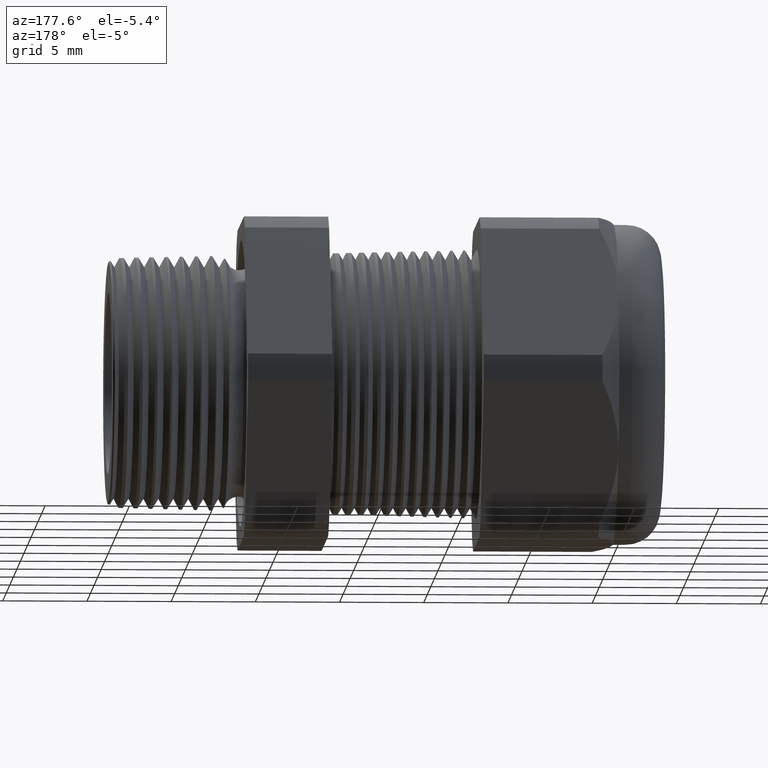
[diagram: clean part render]
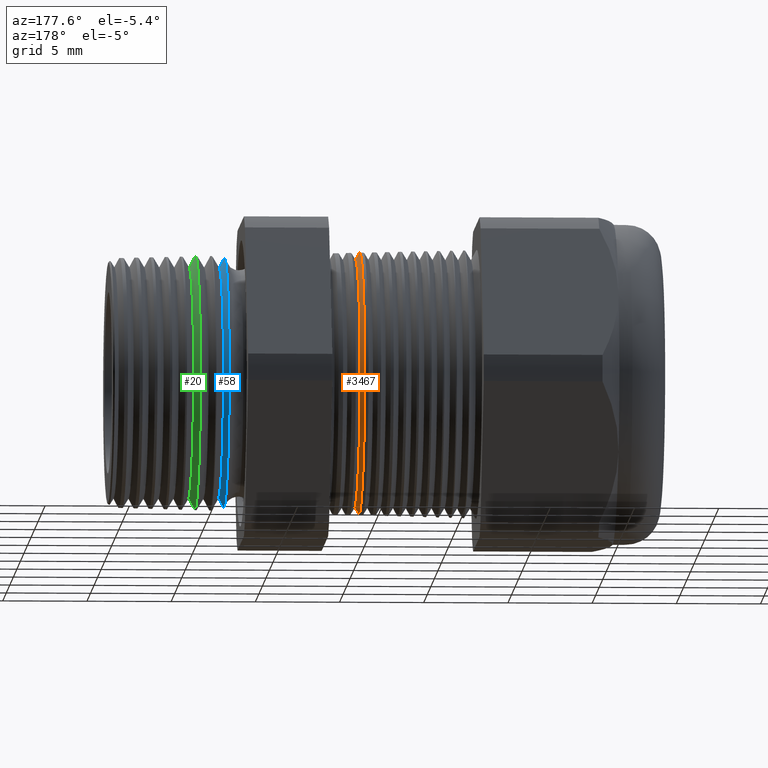
[diagram: same view with three faces highlighted in distinct colors, each labeled with its STEP entity id]
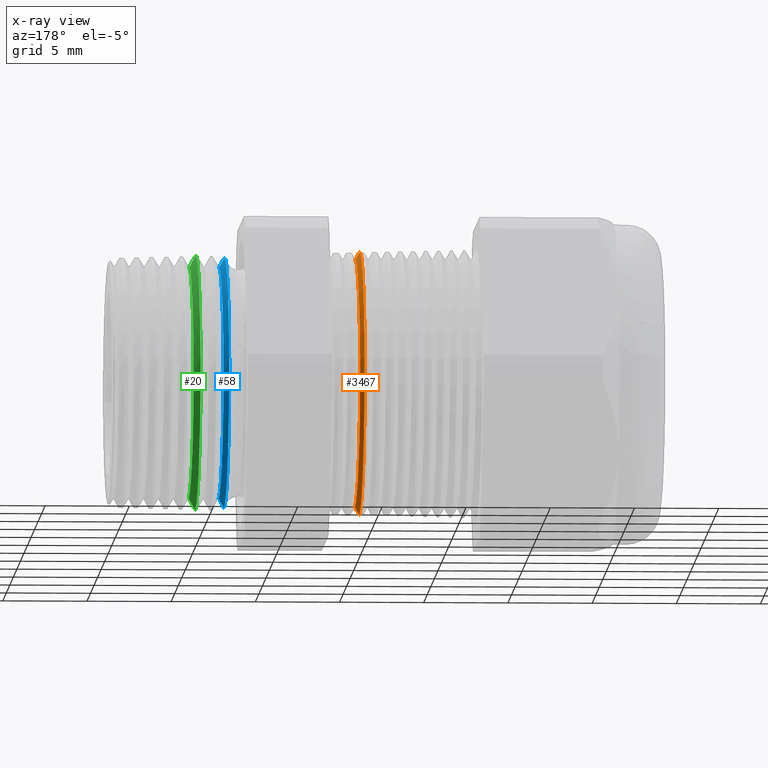
[diagram: x-ray of the same camera — body ghosted, the three highlighted faces saturated]
A machine part, auxiliary view with three faces highlighted in distinct colors.
The next image is the same camera in x-ray (body ghosted, the three faces saturated) — at least one of them is partly hidden behind the body in this view.
Their STEP definitions:

[orange] entity #3467 — the highlighted conical surface has half-angle 61.5 deg.
#573 = DIRECTION ( 'NONE',  ( -0.4771587602596185100, 0.0000000000000000000, 0.8788171126619599400 ) ) ;
#574 = VECTOR ( 'NONE', #573, 39.37007874015748900 ) ;
#575 = CARTESIAN_POINT ( 'NONE',  ( -0.5908661417322828000, 0.0000000000000000000, 0.3150000000000000000 ) ) ;
#576 = LINE ( 'NONE', #575, #574 ) ;
#613 = CARTESIAN_POINT ( 'NONE',  ( -0.5770917547981787600, 0.0000000000000000000, 0.2896307351718082600 ) ) ;
#614 = CARTESIAN_POINT ( 'NONE',  ( -0.5770917547981787600, 3.658378589421232100E-017, -0.2896307351718082600 ) ) ;
#615 = DIRECTION ( 'NONE',  ( 0.0000000000000000000, 0.0000000000000000000, -1.000000000000000000 ) ) ;
#616 = DIRECTION ( 'NONE',  ( 1.000000000000000000, 0.0000000000000000000, 0.0000000000000000000 ) ) ;
#617 = AXIS2_PLACEMENT_3D ( 'NONE', #624, #616, #615 ) ;
#618 = CIRCLE ( 'NONE', #617, 0.2896307351718082600 ) ;
#624 = CARTESIAN_POINT ( 'NONE',  ( -0.5770917547981787600, 0.0000000000000000000, 0.0000000000000000000 ) ) ;
#636 = CARTESIAN_POINT ( 'NONE',  ( -0.5869719704530196300, 0.0000000000000000000, 0.3078278287126256500 ) ) ;
#637 = DIRECTION ( 'NONE',  ( 0.0000000000000000000, 0.0000000000000000000, 1.000000000000000000 ) ) ;
#638 = DIRECTION ( 'NONE',  ( 1.000000000000000000, 0.0000000000000000000, 0.0000000000000000000 ) ) ;
#639 = CARTESIAN_POINT ( 'NONE',  ( -0.5869719704530196300, 0.0000000000000000000, 0.0000000000000000000 ) ) ;
#640 = AXIS2_PLACEMENT_3D ( 'NONE', #639, #638, #637 ) ;
#641 = CIRCLE ( 'NONE', #640, 0.3078278287126256500 ) ;
#642 = CARTESIAN_POINT ( 'NONE',  ( -0.5869719704530196300, 3.771218986223280800E-017, -0.3078278287126256500 ) ) ;
#643 = DIRECTION ( 'NONE',  ( -0.4771587602596185100, 1.076240564057388000E-016, -0.8788171126619599400 ) ) ;
#644 = VECTOR ( 'NONE', #643, 39.37007874015748900 ) ;
#645 = CARTESIAN_POINT ( 'NONE',  ( -0.5908661417322828000, 3.857637417314162700E-017, -0.3150000000000000000 ) ) ;
#646 = DIRECTION ( 'NONE',  ( 0.0000000000000000000, 0.0000000000000000000, 1.000000000000000000 ) ) ;
#647 = DIRECTION ( 'NONE',  ( -1.000000000000000000, 0.0000000000000000000, 0.0000000000000000000 ) ) ;
#648 = CARTESIAN_POINT ( 'NONE',  ( -0.5908661417322828000, 0.0000000000000000000, 0.0000000000000000000 ) ) ;
#649 = AXIS2_PLACEMENT_3D ( 'NONE', #648, #647, #646 ) ;
#650 = CONICAL_SURFACE ( 'NONE', #649, 0.3150000000000000000, 1.073377489976501200 ) ;
#651 = LINE ( 'NONE', #645, #644 ) ;
#652 = FACE_OUTER_BOUND ( 'NONE', #3468, .T. ) ;
#3441 = EDGE_CURVE ( 'NONE', #3451, #3475, #576, .T. ) ;
#3449 = EDGE_CURVE ( 'NONE', #3450, #3451, #618, .T. ) ;
#3450 = VERTEX_POINT ( 'NONE', #614 ) ;
#3451 = VERTEX_POINT ( 'NONE', #613 ) ;
#3467 = ADVANCED_FACE ( 'NONE', ( #652 ), #650, .T. ) ;
#3468 = EDGE_LOOP ( 'NONE', ( #3469, #3470, #3473, #3485 ) ) ;
#3469 = ORIENTED_EDGE ( 'NONE', *, *, #3449, .F. ) ;
#3470 = ORIENTED_EDGE ( 'NONE', *, *, #3471, .T. ) ;
#3471 = EDGE_CURVE ( 'NONE', #3450, #3472, #651, .T. ) ;
#3472 = VERTEX_POINT ( 'NONE', #642 ) ;
#3473 = ORIENTED_EDGE ( 'NONE', *, *, #3474, .T. ) ;
#3474 = EDGE_CURVE ( 'NONE', #3472, #3475, #641, .T. ) ;
#3475 = VERTEX_POINT ( 'NONE', #636 ) ;
#3485 = ORIENTED_EDGE ( 'NONE', *, *, #3441, .F. ) ;

[blue] entity #58 — the highlighted conical surface has half-angle 61.5 deg.
#4 = EDGE_CURVE ( 'NONE', #82, #83, #128, .T. ) ;
#16 = EDGE_CURVE ( 'NONE', #83, #4701, #162, .T. ) ;
#53 = ORIENTED_EDGE ( 'NONE', *, *, #4, .F. ) ;
#54 = ORIENTED_EDGE ( 'NONE', *, *, #60, .T. ) ;
#56 = ORIENTED_EDGE ( 'NONE', *, *, #4703, .T. ) ;
#57 = ORIENTED_EDGE ( 'NONE', *, *, #16, .F. ) ;
#58 = ADVANCED_FACE ( 'NONE', ( #279 ), #277, .T. ) ;
#59 = EDGE_LOOP ( 'NONE', ( #53, #54, #56, #57 ) ) ;
#60 = EDGE_CURVE ( 'NONE', #82, #4666, #273, .T. ) ;
#82 = VERTEX_POINT ( 'NONE', #295 ) ;
#83 = VERTEX_POINT ( 'NONE', #294 ) ;
#124 = DIRECTION ( 'NONE',  ( 0.0000000000000000000, 0.0000000000000000000, -1.000000000000000000 ) ) ;
#125 = DIRECTION ( 'NONE',  ( 1.000000000000000000, 0.0000000000000000000, 0.0000000000000000000 ) ) ;
#126 = CARTESIAN_POINT ( 'NONE',  ( -0.2584707356790750300, 0.0000000000000000000, 0.0000000000000000000 ) ) ;
#127 = AXIS2_PLACEMENT_3D ( 'NONE', #126, #125, #124 ) ;
#128 = CIRCLE ( 'NONE', #127, 0.2701319446236517500 ) ;
#161 = CARTESIAN_POINT ( 'NONE',  ( -0.2749999999999998600, 0.0000000000000000000, 0.3005750624174817800 ) ) ;
#162 = LINE ( 'NONE', #161, #222 ) ;
#221 = DIRECTION ( 'NONE',  ( -0.4771587602596195100, 0.0000000000000000000, 0.8788171126619593900 ) ) ;
#222 = VECTOR ( 'NONE', #221, 39.37007874015748100 ) ;
#270 = DIRECTION ( 'NONE',  ( -0.4771587602596195100, 1.076240564057387400E-016, -0.8788171126619593900 ) ) ;
#271 = VECTOR ( 'NONE', #270, 39.37007874015748100 ) ;
#272 = CARTESIAN_POINT ( 'NONE',  ( -0.2749999999999998600, 3.680982880930849200E-017, -0.3005750624174817800 ) ) ;
#273 = LINE ( 'NONE', #272, #271 ) ;
#274 = DIRECTION ( 'NONE',  ( 0.0000000000000000000, 0.0000000000000000000, 1.000000000000000000 ) ) ;
#275 = DIRECTION ( 'NONE',  ( -1.000000000000000000, 0.0000000000000000000, 0.0000000000000000000 ) ) ;
#276 = AXIS2_PLACEMENT_3D ( 'NONE', #278, #275, #274 ) ;
#277 = CONICAL_SURFACE ( 'NONE', #276, 0.3005750624174817800, 1.073377489976500100 ) ;
#278 = CARTESIAN_POINT ( 'NONE',  ( -0.2749999999999998600, 0.0000000000000000000, 0.0000000000000000000 ) ) ;
#279 = FACE_OUTER_BOUND ( 'NONE', #59, .T. ) ;
#294 = CARTESIAN_POINT ( 'NONE',  ( -0.2584707356790750300, 0.0000000000000000000, 0.2701319446236517500 ) ) ;
#295 = CARTESIAN_POINT ( 'NONE',  ( -0.2584707356790750300, 3.447728831238839500E-017, -0.2701319446236517500 ) ) ;
#2677 = CARTESIAN_POINT ( 'NONE',  ( -0.2708463023710458400, 3.587295449169627000E-017, -0.2929249030550883400 ) ) ;
#2759 = DIRECTION ( 'NONE',  ( 0.0000000000000000000, 0.0000000000000000000, 1.000000000000000000 ) ) ;
#2760 = DIRECTION ( 'NONE',  ( 1.000000000000000000, 0.0000000000000000000, 0.0000000000000000000 ) ) ;
#2761 = CARTESIAN_POINT ( 'NONE',  ( -0.2708463023710458400, 0.0000000000000000000, 0.0000000000000000000 ) ) ;
#2762 = AXIS2_PLACEMENT_3D ( 'NONE', #2761, #2760, #2759 ) ;
#2763 = CIRCLE ( 'NONE', #2762, 0.2929249030550883400 ) ;
#2765 = CARTESIAN_POINT ( 'NONE',  ( -0.2708463023710458400, 0.0000000000000000000, 0.2929249030550883400 ) ) ;
#4666 = VERTEX_POINT ( 'NONE', #2677 ) ;
#4701 = VERTEX_POINT ( 'NONE', #2765 ) ;
#4703 = EDGE_CURVE ( 'NONE', #4666, #4701, #2763, .T. ) ;

[green] entity #20 — the highlighted conical surface has half-angle 61.5 deg.
#7 = VERTEX_POINT ( 'NONE', #188 ) ;
#9 = VERTEX_POINT ( 'NONE', #183 ) ;
#10 = EDGE_CURVE ( 'NONE', #7, #9, #182, .T. ) ;
#11 = ORIENTED_EDGE ( 'NONE', *, *, #12, .F. ) ;
#12 = EDGE_CURVE ( 'NONE', #31, #9, #177, .T. ) ;
#17 = ORIENTED_EDGE ( 'NONE', *, *, #10, .T. ) ;
#18 = ORIENTED_EDGE ( 'NONE', *, *, #4771, .T. ) ;
#20 = ADVANCED_FACE ( 'NONE', ( #216 ), #215, .T. ) ;
#21 = EDGE_LOOP ( 'NONE', ( #22, #18, #17, #11 ) ) ;
#22 = ORIENTED_EDGE ( 'NONE', *, *, #28, .F. ) ;
#28 = EDGE_CURVE ( 'NONE', #30, #31, #205, .T. ) ;
#30 = VERTEX_POINT ( 'NONE', #195 ) ;
#31 = VERTEX_POINT ( 'NONE', #194 ) ;
#174 = DIRECTION ( 'NONE',  ( -0.4771587602596195100, 0.0000000000000000000, 0.8788171126619593900 ) ) ;
#175 = VECTOR ( 'NONE', #174, 39.37007874015748100 ) ;
#176 = CARTESIAN_POINT ( 'NONE',  ( -0.2049999999999998200, 0.0000000000000000000, 0.3005750624174817800 ) ) ;
#177 = LINE ( 'NONE', #176, #175 ) ;
#178 = DIRECTION ( 'NONE',  ( 0.0000000000000000000, 0.0000000000000000000, 1.000000000000000000 ) ) ;
#179 = DIRECTION ( 'NONE',  ( 1.000000000000000000, 0.0000000000000000000, 0.0000000000000000000 ) ) ;
#180 = CARTESIAN_POINT ( 'NONE',  ( -0.2034856000580641300, 0.0000000000000000000, 0.0000000000000000000 ) ) ;
#181 = AXIS2_PLACEMENT_3D ( 'NONE', #180, #179, #178 ) ;
#182 = CIRCLE ( 'NONE', #181, 0.2977858846946139200 ) ;
#183 = CARTESIAN_POINT ( 'NONE',  ( -0.2034856000580641300, 0.0000000000000000000, 0.2977858846946139200 ) ) ;
#188 = CARTESIAN_POINT ( 'NONE',  ( -0.2034856000580641300, 3.647304855553809300E-017, -0.2977858846946139200 ) ) ;
#194 = CARTESIAN_POINT ( 'NONE',  ( -0.1884707356790749900, 0.0000000000000000000, 0.2701319446236517500 ) ) ;
#195 = CARTESIAN_POINT ( 'NONE',  ( -0.1884707356790749900, 3.477493759266634500E-017, -0.2701319446236517500 ) ) ;
#201 = DIRECTION ( 'NONE',  ( 0.0000000000000000000, 0.0000000000000000000, -1.000000000000000000 ) ) ;
#202 = DIRECTION ( 'NONE',  ( 1.000000000000000000, 0.0000000000000000000, 0.0000000000000000000 ) ) ;
#203 = CARTESIAN_POINT ( 'NONE',  ( -0.1884707356790749900, 0.0000000000000000000, 0.0000000000000000000 ) ) ;
#204 = AXIS2_PLACEMENT_3D ( 'NONE', #203, #202, #201 ) ;
#205 = CIRCLE ( 'NONE', #204, 0.2701319446236517500 ) ;
#211 = DIRECTION ( 'NONE',  ( 0.0000000000000000000, 0.0000000000000000000, 1.000000000000000000 ) ) ;
#212 = DIRECTION ( 'NONE',  ( -1.000000000000000000, 0.0000000000000000000, 0.0000000000000000000 ) ) ;
#213 = CARTESIAN_POINT ( 'NONE',  ( -0.2049999999999998200, 0.0000000000000000000, 0.0000000000000000000 ) ) ;
#214 = AXIS2_PLACEMENT_3D ( 'NONE', #213, #212, #211 ) ;
#215 = CONICAL_SURFACE ( 'NONE', #214, 0.3005750624174817800, 1.073377489976500100 ) ;
#216 = FACE_OUTER_BOUND ( 'NONE', #21, .T. ) ;
#2883 = DIRECTION ( 'NONE',  ( -0.4771587602596195100, 1.076240564057387400E-016, -0.8788171126619593900 ) ) ;
#2884 = VECTOR ( 'NONE', #2883, 39.37007874015748100 ) ;
#2885 = CARTESIAN_POINT ( 'NONE',  ( -0.2049999999999998200, 3.680982880930849200E-017, -0.3005750624174817800 ) ) ;
#2886 = LINE ( 'NONE', #2885, #2884 ) ;
#4771 = EDGE_CURVE ( 'NONE', #30, #7, #2886, .T. ) ;